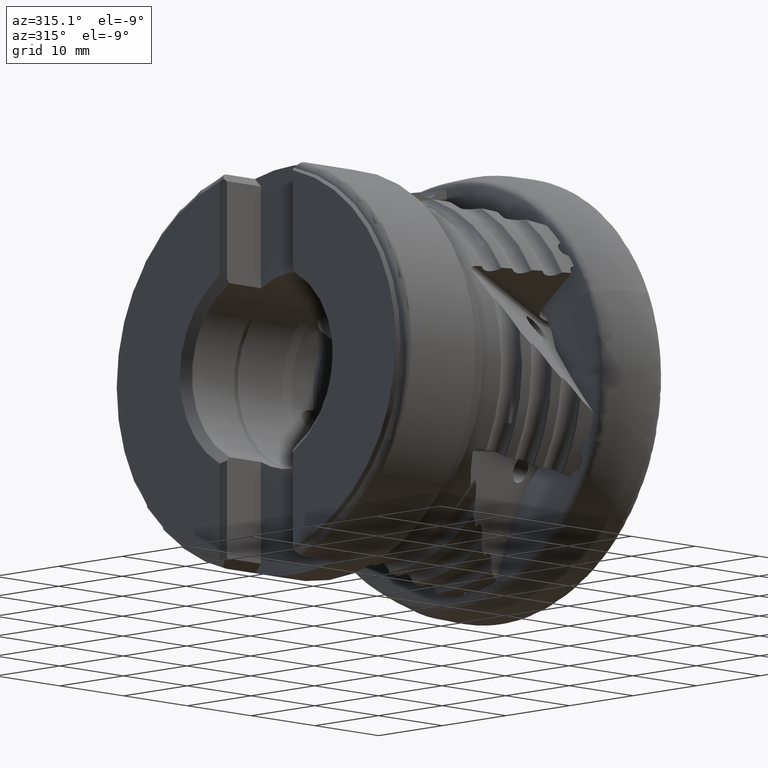
[diagram: clean part render]
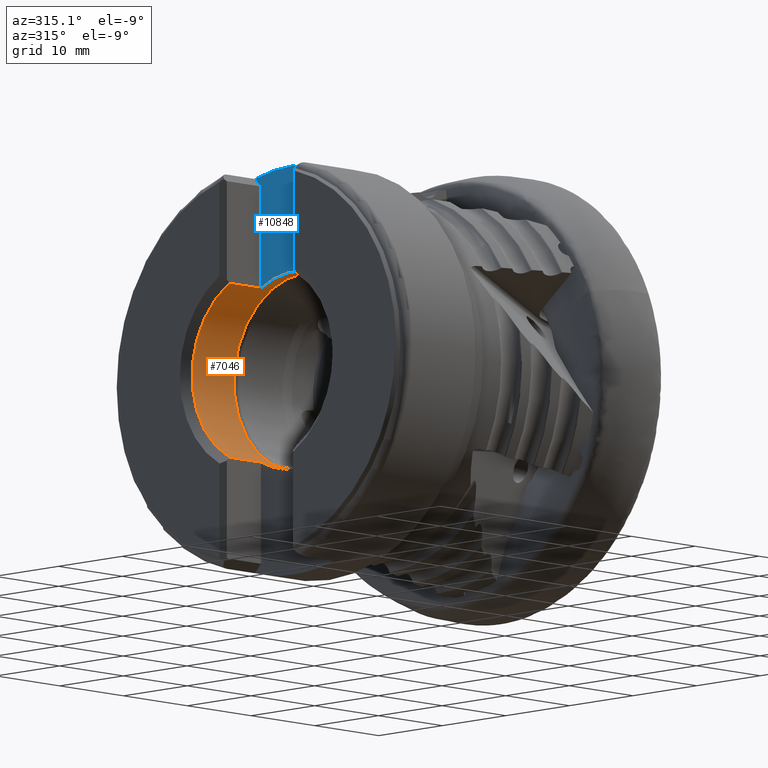
[diagram: same view with the hole feature highlighted: cylindrical wall and planar end face, labeled with their STEP entity ids]
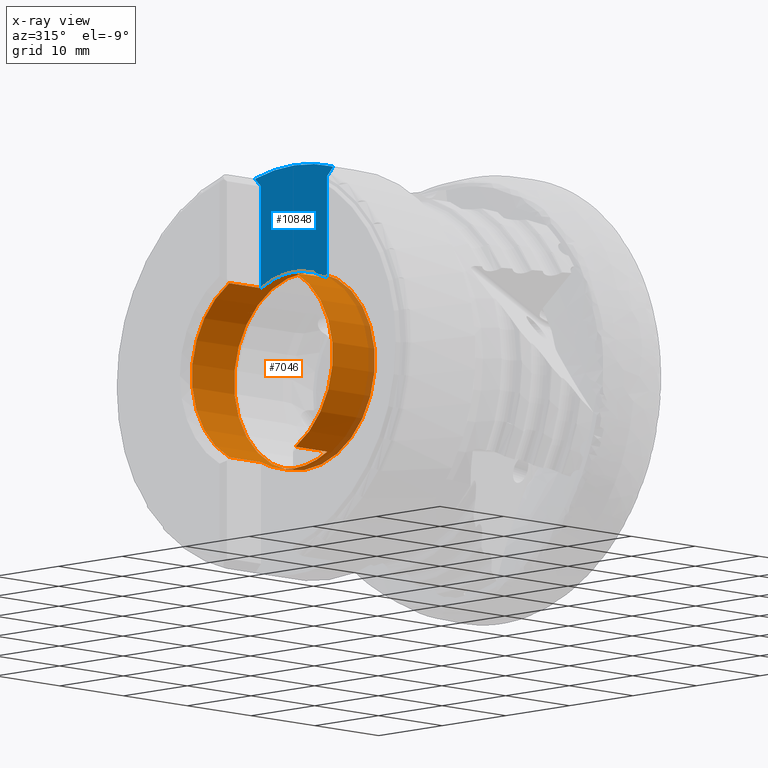
[diagram: x-ray of the same camera — body ghosted, the hole faces saturated]
A machine part, auxiliary view. The highlighted faces form one hole feature of diameter 22.15 mm: the cylindrical wall (entity #7046, orange) and its adjacent planar end face (entity #10848, blue) — they share a circular edge in the B-rep.
The next image is the same camera in x-ray (body ghosted, the hole faces saturated) — the bore reads through the body.
Wall:
#195 = CARTESIAN_POINT ( 'NONE',  ( -33.06999999999999300, 5.199999999999994000, -9.778324242936518500 ) ) ;
#424 = ORIENTED_EDGE ( 'NONE', *, *, #8392, .F. ) ;
#482 = EDGE_CURVE ( 'NONE', #4908, #10917, #5115, .T. ) ;
#584 = VECTOR ( 'NONE', #3847, 1000.000000000000000 ) ;
#852 = CARTESIAN_POINT ( 'NONE',  ( -31.44999999999999900, 0.0000000000000000000, 0.0000000000000000000 ) ) ;
#875 = AXIS2_PLACEMENT_3D ( 'NONE', #6896, #1488, #7818 ) ;
#924 = VECTOR ( 'NONE', #3271, 1000.000000000000000 ) ;
#1016 = EDGE_CURVE ( 'NONE', #11025, #11025, #3128, .T. ) ;
#1285 = LINE ( 'NONE', #1389, #6130 ) ;
#1389 = CARTESIAN_POINT ( 'NONE',  ( 2.529129553760571900E-015, -5.199999999999986000, 9.778324242936523800 ) ) ;
#1488 = DIRECTION ( 'NONE',  ( -1.000000000000000000, -0.0000000000000000000, -0.0000000000000000000 ) ) ;
#1559 = EDGE_CURVE ( 'NONE', #5074, #5900, #3662, .T. ) ;
#1662 = DIRECTION ( 'NONE',  ( -1.000000000000000000, 0.0000000000000000000, 0.0000000000000000000 ) ) ;
#1695 = EDGE_CURVE ( 'Kante70', #5900, #7599, #4907, .T. ) ;
#1781 = CARTESIAN_POINT ( 'NONE',  ( 2.529129553760568000E-015, 5.199999999999977100, 9.778324242936527400 ) ) ;
#1794 = DIRECTION ( 'NONE',  ( 0.0000000000000000000, 0.0000000000000000000, -1.000000000000000000 ) ) ;
#1868 = AXIS2_PLACEMENT_3D ( 'NONE', #8406, #3001, #9297 ) ;
#1915 = AXIS2_PLACEMENT_3D ( 'NONE', #2506, #8815, #3430 ) ;
#2506 = CARTESIAN_POINT ( 'NONE',  ( -38.04999999999999700, 0.0000000000000000000, 0.0000000000000000000 ) ) ;
#2584 = FACE_OUTER_BOUND ( 'NONE', #7119, .T. ) ;
#2716 = CARTESIAN_POINT ( 'NONE',  ( -31.44999999999999900, 0.0000000000000000000, -11.07499999999999800 ) ) ;
#2718 = VECTOR ( 'NONE', #1662, 1000.000000000000000 ) ;
#2747 = LINE ( 'NONE', #9211, #584 ) ;
#3001 = DIRECTION ( 'NONE',  ( 1.000000000000000000, -0.0000000000000000000, -0.0000000000000000000 ) ) ;
#3128 = CIRCLE ( 'NONE', #3805, 11.07499999999999800 ) ;
#3271 = DIRECTION ( 'NONE',  ( 1.000000000000000000, -0.0000000000000000000, -0.0000000000000000000 ) ) ;
#3283 = DIRECTION ( 'NONE',  ( -1.000000000000000000, -0.0000000000000000000, -0.0000000000000000000 ) ) ;
#3430 = DIRECTION ( 'NONE',  ( 0.0000000000000000000, 0.0000000000000000000, -1.000000000000000000 ) ) ;
#3551 = ORIENTED_EDGE ( 'NONE', *, *, #482, .T. ) ;
#3662 = LINE ( 'NONE', #4190, #924 ) ;
#3682 = ORIENTED_EDGE ( 'NONE', *, *, #1695, .T. ) ;
#3805 = AXIS2_PLACEMENT_3D ( 'NONE', #852, #7186, #1794 ) ;
#3847 = DIRECTION ( 'NONE',  ( -1.000000000000000000, 0.0000000000000000000, 0.0000000000000000000 ) ) ;
#4190 = CARTESIAN_POINT ( 'NONE',  ( 2.529129553760568000E-015, 5.199999999999977100, -9.778324242936527400 ) ) ;
#4429 = EDGE_LOOP ( 'NONE', ( #424, #5143, #3682, #11427, #6952, #10109, #9750, #3551 ) ) ;
#4457 = DIRECTION ( 'NONE',  ( 0.0000000000000000000, 0.0000000000000000000, -1.000000000000000000 ) ) ;
#4719 = CYLINDRICAL_SURFACE ( 'NONE', #5826, 11.07499999999999800 ) ;
#4884 = CARTESIAN_POINT ( 'NONE',  ( -33.06999999999999300, 5.199999999999994000, 9.778324242936518500 ) ) ;
#4907 = CIRCLE ( 'NONE', #875, 11.07499999999999800 ) ;
#4908 = VERTEX_POINT ( 'NONE', #4884 ) ;
#5052 = CARTESIAN_POINT ( 'NONE',  ( -38.04999999999999700, -5.200000000000004600, -9.778324242936513100 ) ) ;
#5074 = VERTEX_POINT ( 'NONE', #8947 ) ;
#5115 = LINE ( 'NONE', #1781, #2718 ) ;
#5143 = ORIENTED_EDGE ( 'NONE', *, *, #1559, .T. ) ;
#5539 = CARTESIAN_POINT ( 'NONE',  ( -38.04999999999999000, -5.200000000000004600, 9.778324242936550400 ) ) ;
#5826 = AXIS2_PLACEMENT_3D ( 'NONE', #10757, #9836, #4457 ) ;
#5900 = VERTEX_POINT ( 'NONE', #195 ) ;
#5928 = EDGE_CURVE ( 'NONE', #6584, #8839, #9360, .T. ) ;
#6130 = VECTOR ( 'NONE', #10408, 1000.000000000000000 ) ;
#6584 = VERTEX_POINT ( 'NONE', #5539 ) ;
#6896 = CARTESIAN_POINT ( 'NONE',  ( -33.06999999999999300, 0.0000000000000000000, 0.0000000000000000000 ) ) ;
#6952 = ORIENTED_EDGE ( 'NONE', *, *, #5928, .F. ) ;
#6966 = CARTESIAN_POINT ( 'NONE',  ( -33.06999999999999300, -5.200000000000002000, 9.778324242936523800 ) ) ;
#7046 = ADVANCED_FACE ( 'NONE', ( #7650, #2584 ), #4719, .F. ) ;
#7119 = EDGE_LOOP ( 'NONE', ( #10722 ) ) ;
#7186 = DIRECTION ( 'NONE',  ( 1.000000000000000000, -0.0000000000000000000, -0.0000000000000000000 ) ) ;
#7599 = VERTEX_POINT ( 'NONE', #10663 ) ;
#7650 = FACE_OUTER_BOUND ( 'NONE', #4429, .T. ) ;
#7818 = DIRECTION ( 'NONE',  ( 0.0000000000000000000, 0.0000000000000000000, -1.000000000000000000 ) ) ;
#8392 = EDGE_CURVE ( 'NONE', #5074, #10917, #10939, .T. ) ;
#8406 = CARTESIAN_POINT ( 'NONE',  ( -38.04999999999999700, 0.0000000000000000000, 0.0000000000000000000 ) ) ;
#8510 = CIRCLE ( 'NONE', #8897, 11.07499999999999800 ) ;
#8665 = CARTESIAN_POINT ( 'NONE',  ( -33.06999999999999300, 0.0000000000000000000, 0.0000000000000000000 ) ) ;
#8815 = DIRECTION ( 'NONE',  ( 1.000000000000000000, -0.0000000000000000000, -0.0000000000000000000 ) ) ;
#8839 = VERTEX_POINT ( 'NONE', #5052 ) ;
#8897 = AXIS2_PLACEMENT_3D ( 'NONE', #8665, #3283, #9573 ) ;
#8947 = CARTESIAN_POINT ( 'NONE',  ( -38.04999999999999000, 5.199999999999996600, -9.778324242936554000 ) ) ;
#9122 = EDGE_CURVE ( 'NONE', #7599, #8839, #2747, .T. ) ;
#9211 = CARTESIAN_POINT ( 'NONE',  ( 2.529129553760571900E-015, -5.199999999999986000, -9.778324242936523800 ) ) ;
#9297 = DIRECTION ( 'NONE',  ( 0.0000000000000000000, 0.0000000000000000000, -1.000000000000000000 ) ) ;
#9360 = CIRCLE ( 'NONE', #1868, 11.07499999999999800 ) ;
#9393 = EDGE_CURVE ( 'Kante3', #6584, #10026, #1285, .T. ) ;
#9408 = EDGE_CURVE ( 'Kante69', #10026, #4908, #8510, .T. ) ;
#9573 = DIRECTION ( 'NONE',  ( 0.0000000000000000000, 1.776356839400250500E-015, -1.000000000000000000 ) ) ;
#9750 = ORIENTED_EDGE ( 'NONE', *, *, #9408, .T. ) ;
#9836 = DIRECTION ( 'NONE',  ( 1.000000000000000000, -0.0000000000000000000, -0.0000000000000000000 ) ) ;
#10026 = VERTEX_POINT ( 'NONE', #6966 ) ;
#10109 = ORIENTED_EDGE ( 'NONE', *, *, #9393, .T. ) ;
#10408 = DIRECTION ( 'NONE',  ( 1.000000000000000000, -0.0000000000000000000, -0.0000000000000000000 ) ) ;
#10595 = CARTESIAN_POINT ( 'NONE',  ( -38.04999999999999700, 5.199999999999996600, 9.778324242936518500 ) ) ;
#10663 = CARTESIAN_POINT ( 'NONE',  ( -33.06999999999999300, -5.200000000000002000, -9.778324242936523800 ) ) ;
#10722 = ORIENTED_EDGE ( 'NONE', *, *, #1016, .T. ) ;
#10757 = CARTESIAN_POINT ( 'NONE',  ( 0.0000000000000000000, 0.0000000000000000000, 0.0000000000000000000 ) ) ;
#10917 = VERTEX_POINT ( 'NONE', #10595 ) ;
#10939 = CIRCLE ( 'NONE', #1915, 11.07499999999999800 ) ;
#11025 = VERTEX_POINT ( 'NONE', #2716 ) ;
#11427 = ORIENTED_EDGE ( 'NONE', *, *, #9122, .T. ) ;
End face:
#194 = CIRCLE ( 'NONE', #7386, 23.00000000000000000 ) ;
#323 = DIRECTION ( 'NONE',  ( 0.0000000000000000000, 2.664535259100375700E-015, -1.000000000000000000 ) ) ;
#671 = ORIENTED_EDGE ( 'NONE', *, *, #11261, .T. ) ;
#943 = CARTESIAN_POINT ( 'NONE',  ( -33.06999999999999300, -22.90319289924531200, -6.831197398624723900 ) ) ;
#1161 = ORIENTED_EDGE ( 'NONE', *, *, #1255, .F. ) ;
#1223 = CARTESIAN_POINT ( 'NONE',  ( -33.06999999999999300, -5.200000000000002000, -35.00000000000000000 ) ) ;
#1235 = CARTESIAN_POINT ( 'NONE',  ( -33.06999999999999300, 5.199999999999994000, -35.00000000000000000 ) ) ;
#1255 = EDGE_CURVE ( 'NONE', #4908, #2583, #5605, .T. ) ;
#1267 = ORIENTED_EDGE ( 'NONE', *, *, #10956, .T. ) ;
#1320 = EDGE_CURVE ( 'Kante61', #9565, #2635, #194, .T. ) ;
#1606 = CARTESIAN_POINT ( 'NONE',  ( -33.06999999999999300, 6.156428778033628600, 22.16073971466203600 ) ) ;
#1725 = VECTOR ( 'NONE', #6134, 1000.000000000000000 ) ;
#2225 = ORIENTED_EDGE ( 'NONE', *, *, #1320, .T. ) ;
#2388 = AXIS2_PLACEMENT_3D ( 'NONE', #4181, #11365, #5969 ) ;
#2583 = VERTEX_POINT ( 'NONE', #8745 ) ;
#2635 = VERTEX_POINT ( 'NONE', #1606 ) ;
#3283 = DIRECTION ( 'NONE',  ( -1.000000000000000000, -0.0000000000000000000, -0.0000000000000000000 ) ) ;
#3351 = EDGE_CURVE ( 'NONE', #2635, #2583, #6009, .T. ) ;
#3740 = LINE ( 'NONE', #5240, #1725 ) ;
#4139 = VERTEX_POINT ( 'NONE', #4163 ) ;
#4163 = CARTESIAN_POINT ( 'NONE',  ( -33.06999999999999300, -5.200000000000002000, 21.20653861410988500 ) ) ;
#4181 = CARTESIAN_POINT ( 'NONE',  ( -33.06999999999999300, 5.199999999999994000, -35.00000000000000000 ) ) ;
#4884 = CARTESIAN_POINT ( 'NONE',  ( -33.06999999999999300, 5.199999999999994000, 9.778324242936518500 ) ) ;
#4908 = VERTEX_POINT ( 'NONE', #4884 ) ;
#5047 = VECTOR ( 'NONE', #8631, 1000.000000000000000 ) ;
#5240 = CARTESIAN_POINT ( 'NONE',  ( -33.06999999999999300, 28.11531864613768800, -12.03118326074610200 ) ) ;
#5605 = LINE ( 'NONE', #1235, #5047 ) ;
#5766 = DIRECTION ( 'NONE',  ( -1.000000000000000000, -0.0000000000000000000, -0.0000000000000000000 ) ) ;
#5969 = DIRECTION ( 'NONE',  ( 0.0000000000000000000, 0.0000000000000000000, -1.000000000000000000 ) ) ;
#6009 = LINE ( 'NONE', #943, #7407 ) ;
#6134 = DIRECTION ( 'NONE',  ( -0.0000000000000000000, -0.7079307432236506800, 0.7062818579000946800 ) ) ;
#6233 = CARTESIAN_POINT ( 'NONE',  ( -33.06999999999999300, -6.156428778033631300, 22.16073971466203600 ) ) ;
#6966 = CARTESIAN_POINT ( 'NONE',  ( -33.06999999999999300, -5.200000000000002000, 9.778324242936523800 ) ) ;
#7027 = EDGE_LOOP ( 'NONE', ( #2225, #11055, #1161, #8075, #671, #1267 ) ) ;
#7273 = DIRECTION ( 'NONE',  ( 0.0000000000000000000, -0.7079307432236506800, -0.7062818579000946800 ) ) ;
#7386 = AXIS2_PLACEMENT_3D ( 'NONE', #11176, #5766, #323 ) ;
#7407 = VECTOR ( 'NONE', #7273, 1000.000000000000000 ) ;
#7565 = DIRECTION ( 'NONE',  ( -0.0000000000000000000, -0.0000000000000000000, 1.000000000000000000 ) ) ;
#7783 = VECTOR ( 'NONE', #7565, 1000.000000000000000 ) ;
#8075 = ORIENTED_EDGE ( 'NONE', *, *, #9408, .F. ) ;
#8510 = CIRCLE ( 'NONE', #8897, 11.07499999999999800 ) ;
#8631 = DIRECTION ( 'NONE',  ( -0.0000000000000000000, -0.0000000000000000000, 1.000000000000000000 ) ) ;
#8665 = CARTESIAN_POINT ( 'NONE',  ( -33.06999999999999300, 0.0000000000000000000, 0.0000000000000000000 ) ) ;
#8745 = CARTESIAN_POINT ( 'NONE',  ( -33.06999999999999300, 5.199999999999994000, 21.20653861410988500 ) ) ;
#8897 = AXIS2_PLACEMENT_3D ( 'NONE', #8665, #3283, #9573 ) ;
#9215 = FACE_OUTER_BOUND ( 'NONE', #7027, .T. ) ;
#9408 = EDGE_CURVE ( 'Kante69', #10026, #4908, #8510, .T. ) ;
#9565 = VERTEX_POINT ( 'NONE', #6233 ) ;
#9573 = DIRECTION ( 'NONE',  ( 0.0000000000000000000, 1.776356839400250500E-015, -1.000000000000000000 ) ) ;
#9911 = LINE ( 'NONE', #1223, #7783 ) ;
#10026 = VERTEX_POINT ( 'NONE', #6966 ) ;
#10463 = PLANE ( 'NONE',  #2388 ) ;
#10848 = ADVANCED_FACE ( 'NONE', ( #9215 ), #10463, .F. ) ;
#10956 = EDGE_CURVE ( 'NONE', #4139, #9565, #3740, .T. ) ;
#11055 = ORIENTED_EDGE ( 'NONE', *, *, #3351, .T. ) ;
#11176 = CARTESIAN_POINT ( 'NONE',  ( -33.06999999999999300, 0.0000000000000000000, 0.0000000000000000000 ) ) ;
#11261 = EDGE_CURVE ( 'NONE', #10026, #4139, #9911, .T. ) ;
#11365 = DIRECTION ( 'NONE',  ( 1.000000000000000000, 0.0000000000000000000, 0.0000000000000000000 ) ) ;